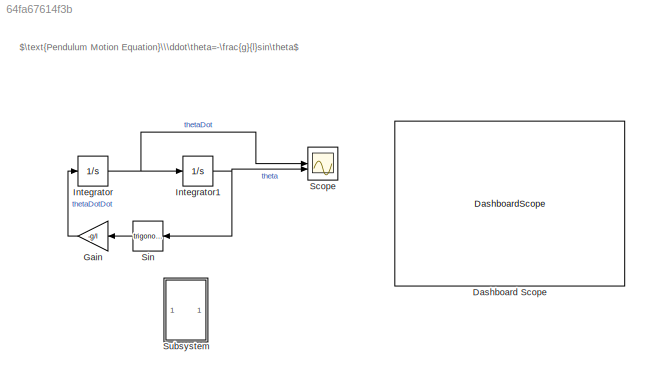
MODEL slx_64fa67614f3b
KIND model
CONFIG AbsTol = auto
CONFIG EnableMultiTasking = off
CONFIG FixedStep = auto
CONFIG MaxStep = 0.01
CONFIG MinStep = auto
CONFIG RelTol = 1e-3
CONFIG SampleTimeConstraint = Unconstrained
CONFIG SolverName = VariableStepAuto
CONFIG StartTime = 0.0
CONFIG StopTime = 10
WORKSPACE source: mxarray member
WORKSPACE Kf = 5
WORKSPACE g = 9.8
WORKSPACE l = 0.5
BLOCK [DashboardScope] Dashboard Scope
BLOCK [Gain] Gain
  Gain = -g/l
  NameLocation = top
BLOCK [Integrator] Integrator
  InitialCondition = 1
BLOCK [Integrator] Integrator1
BLOCK [Scope] Scope
  Floating = off
  NumInputPorts = 2
  ScopeSpecificationString = Simulink.scopes.TimeScopeBlockCfg('CurrentConfiguration', extmgr.ConfigurationSet(extmgr.Configuration('Core','General UI',true),extmgr.Configuration('Core','Source UI',true),extmgr.Configuration('Sources','WiredSimulink',true),extmgr.Configuration('Visuals','Time Domain',true,'SerializedDisplays',{struct('MinYLimReal','-1.25','MaxYLimReal','1.25','YLabelReal','','MinYLimMag','0.00000','MaxYLimMag...<+2030ch>
BLOCK [Trigonometry] Sin
  NameLocation = top
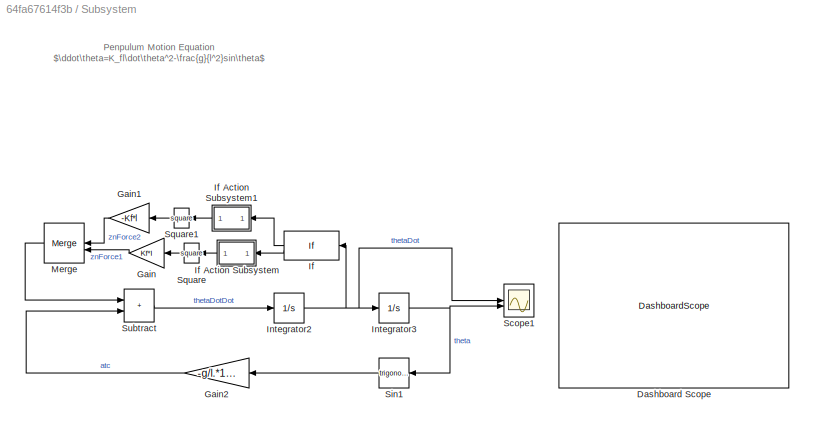
BLOCK [SubSystem] Subsystem
  Commented = on
BLOCK [DashboardScope] Subsystem/Dashboard Scope
BLOCK [Gain] Subsystem/Gain
  Gain = Kf*l
  NameLocation = top
BLOCK [Gain] Subsystem/Gain1
  Gain = -Kf*l
  NameLocation = top
BLOCK [Gain] Subsystem/Gain2
  Gain = -g/l.*1/l
  NameLocation = top
BLOCK [If] Subsystem/If
  NameLocation = top
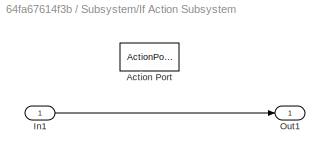
BLOCK [SubSystem] Subsystem/If Action Subsystem
  NameLocation = top
  TreatAsAtomicUnit = on
BLOCK [ActionPort] Subsystem/If Action Subsystem/Action Port
BLOCK [Inport] Subsystem/If Action Subsystem/In1
BLOCK [Outport] Subsystem/If Action Subsystem/Out1
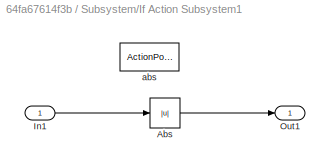
BLOCK [SubSystem] Subsystem/If Action Subsystem1
  NameLocation = top
  TreatAsAtomicUnit = on
BLOCK [Abs] Subsystem/If Action Subsystem1/Abs
  SaturateOnIntegerOverflow = off
BLOCK [Inport] Subsystem/If Action Subsystem1/In1
BLOCK [Outport] Subsystem/If Action Subsystem1/Out1
BLOCK [ActionPort] Subsystem/If Action Subsystem1/abs
  NameLocation = left
BLOCK [Integrator] Subsystem/Integrator2
  InitialCondition = 0.8
BLOCK [Integrator] Subsystem/Integrator3
BLOCK [Merge] Subsystem/Merge
  NameLocation = top
BLOCK [Scope] Subsystem/Scope1
  Floating = off
  NumInputPorts = 2
  ScopeSpecificationString = Simulink.scopes.TimeScopeBlockCfg('CurrentConfiguration', extmgr.ConfigurationSet(extmgr.Configuration('Core','General UI',true),extmgr.Configuration('Core','Source UI',true),extmgr.Configuration('Sources','WiredSimulink',true,'DataLoggingVariableName','ScopeData1'),extmgr.Configuration('Visuals','Time Domain',true,'SerializedDisplays',{struct('MinYLimReal','-1.25','MaxYLimReal','1.25','YLabelReal...<+2069ch>
BLOCK [Trigonometry] Subsystem/Sin1
  NameLocation = top
BLOCK [Math] Subsystem/Square
  NameLocation = top
  Operator = square
BLOCK [Math] Subsystem/Square1
  NameLocation = top
  Operator = square
BLOCK [Sum] Subsystem/Subtract
  IconShape = rectangular
ANNOTATION (root): $\text{Pendulum Motion Equation}\\\ddot\theta=-\frac{g}{l}sin\theta$
ANNOTATION Subsystem: Penpulum Motion Equation $\ddot\theta=K_fl\dot\theta^2-\frac{g}{l^2}sin\theta$
LINE Gain:1 -> Integrator:1
NET Integrator1:1 -> Scope:2, Sin:1
NET Integrator:1 -> Integrator1:1, Scope:1
LINE Sin:1 -> Gain:1
LINE Subsystem/Gain1:1 -> Subsystem/Merge:1
LINE Subsystem/Gain2:1 -> Subsystem/Subtract:2
LINE Subsystem/Gain:1 -> Subsystem/Merge:2
LINE Subsystem/If Action Subsystem/In1:1 -> Subsystem/If Action Subsystem/Out1:1
LINE Subsystem/If Action Subsystem1/Abs:1 -> Subsystem/If Action Subsystem1/Out1:1
LINE Subsystem/If Action Subsystem1/In1:1 -> Subsystem/If Action Subsystem1/Abs:1
LINE Subsystem/If Action Subsystem1:1 -> Subsystem/Square1:1
LINE Subsystem/If Action Subsystem:1 -> Subsystem/Square:1
LINE Subsystem/If:1 -> Subsystem/If Action Subsystem1:1
LINE Subsystem/If:2 -> Subsystem/If Action Subsystem:1
NET Subsystem/Integrator2:1 -> Subsystem/If:1, Subsystem/Integrator3:1, Subsystem/Scope1:1
NET Subsystem/Integrator3:1 -> Subsystem/Scope1:2, Subsystem/Sin1:1
LINE Subsystem/Merge:1 -> Subsystem/Subtract:1
LINE Subsystem/Sin1:1 -> Subsystem/Gain2:1
LINE Subsystem/Square1:1 -> Subsystem/Gain1:1
LINE Subsystem/Square:1 -> Subsystem/Gain:1
LINE Subsystem/Subtract:1 -> Subsystem/Integrator2:1
note: NET lines group one-source signal fan-out (src -> all destinations, sorted); 1:1 wires keep LINE
